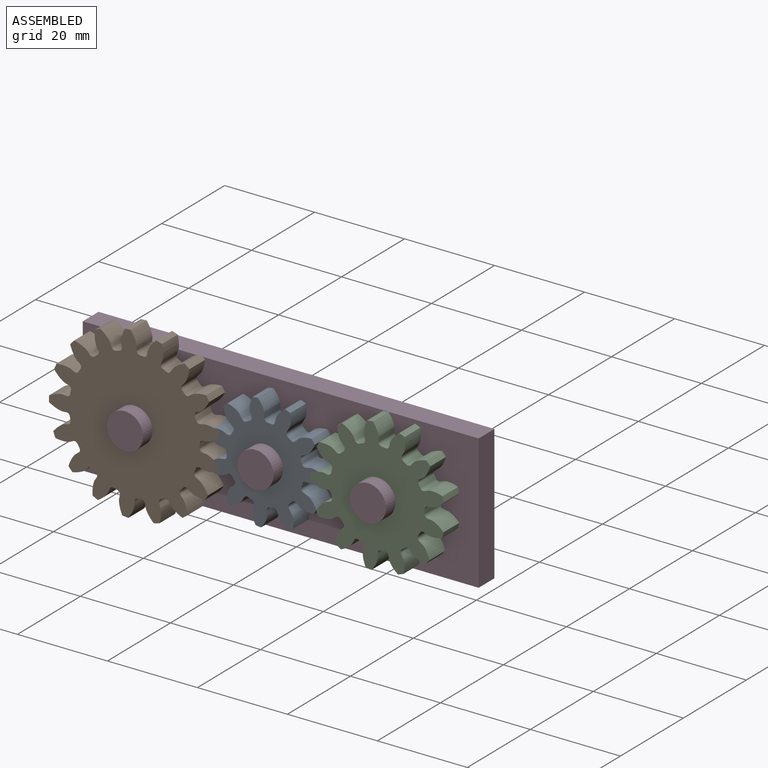
[diagram: assembled view]
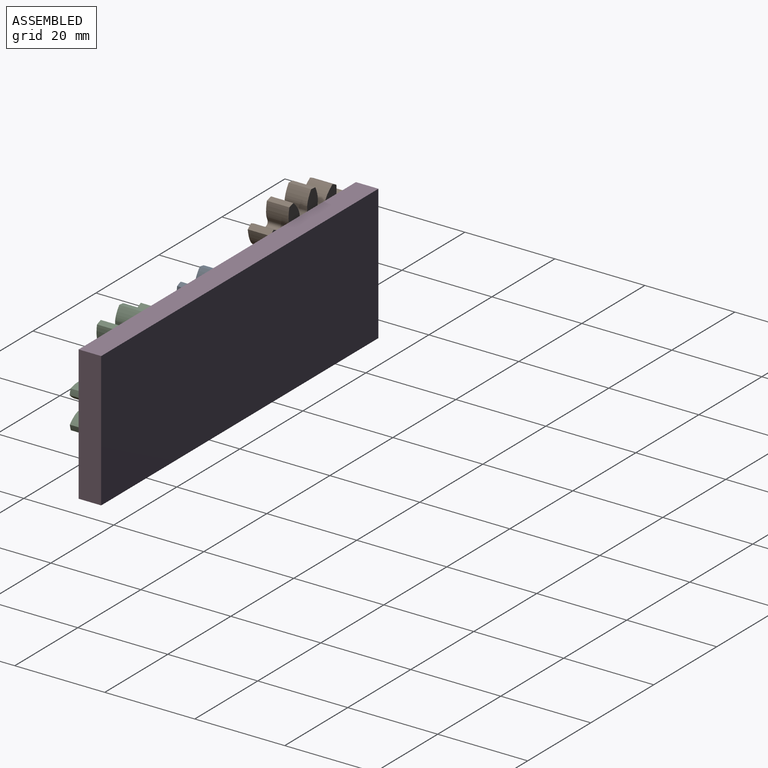
[diagram: assembled view, second angle]
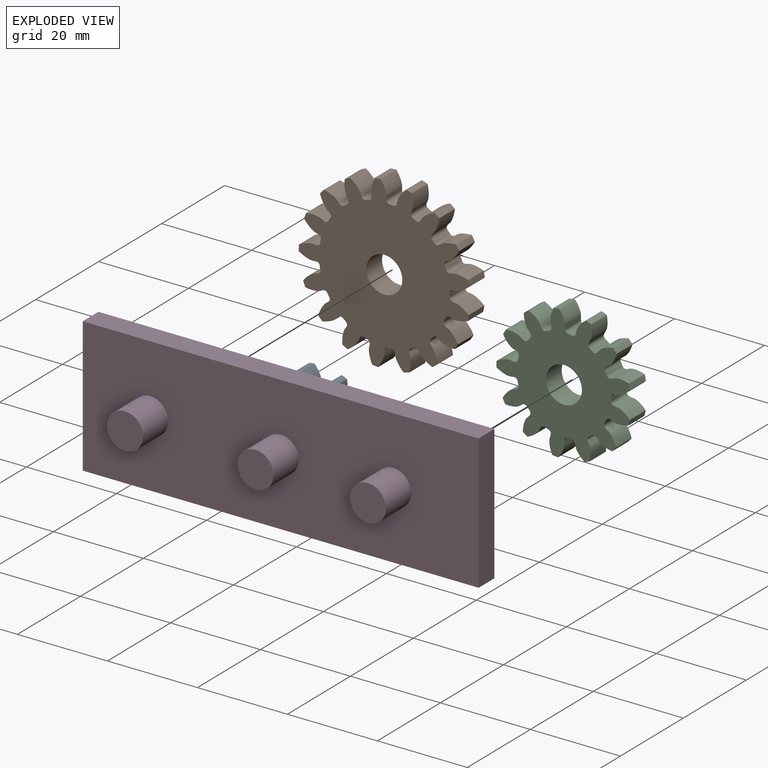
[diagram: exploded view]
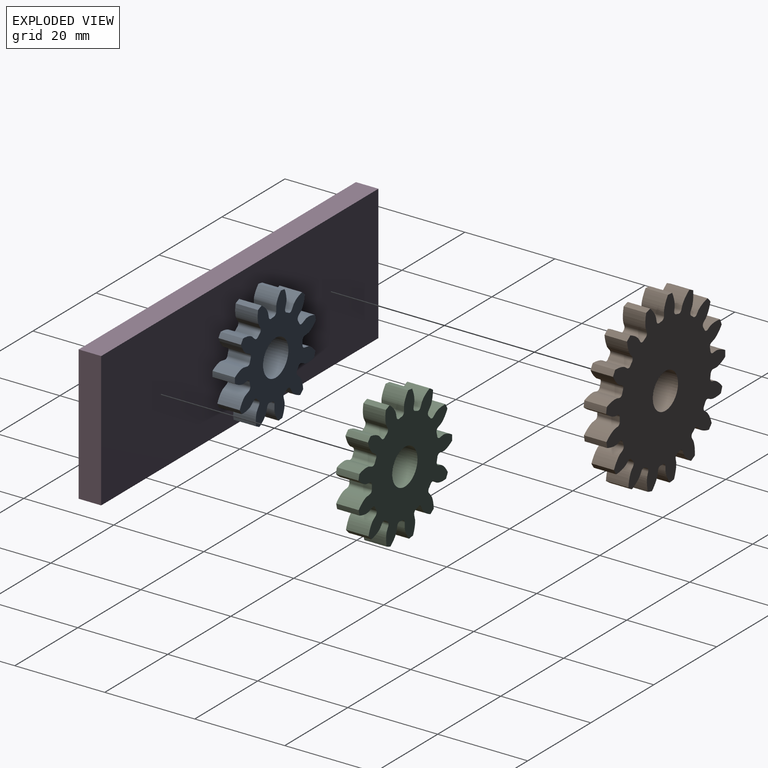
[diagram: exploded view, second angle]
ASSEMBLY  parts=4 mates=3
PART A: 69 faces, bbox 25.7x5x26 mm
  f0: extruded ~5x3.51mm, area 20.6mm2, adj f43,f44,f45,f46
  f1: cylinder r=8.5mm len=5mm, axis (0,1,0), area 4.2mm2, adj f44,f45,f46,f47
  f2: extruded ~5x3.51mm, area 20.6mm2, adj f3,f44,f45,f47
  f3: cylinder r=13mm len=5mm, axis (0,1,0), area 6mm2, adj f2,f4,f44,f45
  f4: extruded ~5x3.98mm, area 20.6mm2, adj f3,f44,f45,f48
  f5: cylinder r=8.5mm len=5mm, axis (0,1,0), area 4.2mm2, adj f44,f45,f48,f49
  f6: extruded ~5x3.5mm, area 20.6mm2, adj f7,f44,f45,f49
  f7: cylinder r=13mm len=5mm, axis (0,1,0), area 6mm2, adj f6,f8,f44,f45
  f8: extruded ~5x3.19mm, area 20.6mm2, adj f7,f44,f45,f50
  f9: cylinder r=8.5mm len=5mm, axis (0,1,0), area 4.2mm2, adj f44,f45,f50,f51
  f10: extruded ~5x3.98mm, area 20.6mm2, adj f11,f44,f45,f51
  f11: cylinder r=13mm len=5mm, axis (0,1,0), area 6mm2, adj f10,f12,f44,f45
  f12: extruded ~5x3.75mm, area 20.6mm2, adj f11,f44,f45,f52
  f13: cylinder r=8.5mm len=5mm, axis (0,1,0), area 4.2mm2, adj f44,f45,f52,f53
  f14: extruded ~5x3.2mm, area 20.6mm2, adj f15,f44,f45,f53
  f15: cylinder r=13mm len=5mm, axis (0,1,0), area 6mm2, adj f14,f16,f44,f45
  f16: extruded ~5x3.9mm, area 20.6mm2, adj f15,f44,f45,f54
  f17: cylinder r=8.5mm len=5mm, axis (0,1,0), area 4.2mm2, adj f44,f45,f54,f55
  f18: extruded ~5x3.74mm, area 20.6mm2, adj f19,f44,f45,f55
  f19: cylinder r=13mm len=5mm, axis (0,1,0), area 6mm2, adj f18,f20,f44,f45
  f20: extruded ~5x2.83mm, area 20.6mm2, adj f19,f44,f45,f56
  f21: cylinder r=8.5mm len=5mm, axis (0,1,0), area 4.2mm2, adj f44,f45,f56,f57
  f22: extruded ~5x3.9mm, area 20.6mm2, adj f23,f44,f45,f57
  f23: cylinder r=13mm len=5mm, axis (0,1,0), area 6mm2, adj f22,f24,f44,f45
  f24: extruded ~5x3.9mm, area 20.6mm2, adj f23,f44,f45,f58
  f25: cylinder r=8.5mm len=5mm, axis (0,1,0), area 4.2mm2, adj f44,f45,f58,f59
  f26: extruded ~5x2.83mm, area 20.6mm2, adj f27,f44,f45,f59
  f27: cylinder r=13mm len=5mm, axis (0,1,0), area 6mm2, adj f26,f28,f44,f45
  f28: extruded ~5x3.74mm, area 20.6mm2, adj f27,f44,f45,f60
  f29: cylinder r=8.5mm len=5mm, axis (0,1,0), area 4.2mm2, adj f44,f45,f60,f61
  f30: extruded ~5x3.9mm, area 20.6mm2, adj f31,f44,f45,f61
  f31: cylinder r=13mm len=5mm, axis (0,1,0), area 6mm2, adj f30,f32,f44,f45
  f32: extruded ~5x3.2mm, area 20.6mm2, adj f31,f44,f45,f62
  f33: cylinder r=8.5mm len=5mm, axis (0,1,0), area 4.2mm2, adj f44,f45,f62,f63
  f34: extruded ~5x3.75mm, area 20.6mm2, adj f35,f44,f45,f63
  f35: cylinder r=13mm len=5mm, axis (0,1,0), area 6mm2, adj f34,f36,f44,f45
  f36: extruded ~5x3.98mm, area 20.6mm2, adj f35,f44,f45,f64
  f37: cylinder r=8.5mm len=5mm, axis (0,1,0), area 4.2mm2, adj f44,f45,f64,f65
  f38: extruded ~5x3.19mm, area 20.6mm2, adj f39,f44,f45,f65
  f39: cylinder r=13mm len=5mm, axis (0,1,0), area 6mm2, adj f38,f40,f44,f45
  f40: extruded ~5x3.5mm, area 20.6mm2, adj f39,f44,f45,f66
  f41: cylinder r=8.5mm len=5mm, axis (0,1,0), area 4.2mm2, adj f44,f45,f66,f67
  f42: extruded ~5x3.98mm, area 20.6mm2, adj f43,f44,f45,f67
  f43: cylinder r=13mm len=5mm, axis (0,1,0), area 6mm2, adj f0,f42,f44,f45
  f44: plane 25.96x25.7mm, normal (0,-1,0), area 314.1mm2, adj f0,f1,f2,f3,f4,f5,f6,f7
  f45: plane 25.96x25.7mm, normal (0,1,0), area 314.1mm2, adj f0,f1,f2,f3,f4,f5,f6,f7
  f46: cylinder r=0.72mm len=5mm, axis (0,1,0), area 5.4mm2, adj f0,f1,f44,f45
  f47: cylinder r=0.72mm len=5mm, axis (0,1,0), area 5.4mm2, adj f1,f2,f44,f45
  f48: cylinder r=0.72mm len=5mm, axis (0,1,0), area 5.4mm2, adj f4,f5,f44,f45
  f49: cylinder r=0.72mm len=5mm, axis (0,1,0), area 5.4mm2, adj f5,f6,f44,f45
  f50: cylinder r=0.72mm len=5mm, axis (0,1,0), area 5.4mm2, adj f8,f9,f44,f45
  f51: cylinder r=0.72mm len=5mm, axis (0,1,0), area 5.4mm2, adj f9,f10,f44,f45
  f52: cylinder r=0.72mm len=5mm, axis (0,1,0), area 5.4mm2, adj f12,f13,f44,f45
  f53: cylinder r=0.72mm len=5mm, axis (0,1,0), area 5.4mm2, adj f13,f14,f44,f45
  f54: cylinder r=0.72mm len=5mm, axis (0,1,0), area 5.4mm2, adj f16,f17,f44,f45
  f55: cylinder r=0.72mm len=5mm, axis (0,1,0), area 5.4mm2, adj f17,f18,f44,f45
  f56: cylinder r=0.72mm len=5mm, axis (0,1,0), area 5.4mm2, adj f20,f21,f44,f45
  f57: cylinder r=0.72mm len=5mm, axis (0,1,0), area 5.4mm2, adj f21,f22,f44,f45
  f58: cylinder r=0.72mm len=5mm, axis (0,1,0), area 5.4mm2, adj f24,f25,f44,f45
  f59: cylinder r=0.72mm len=5mm, axis (0,1,0), area 5.4mm2, adj f25,f26,f44,f45
  f60: cylinder r=0.72mm len=5mm, axis (0,1,0), area 5.4mm2, adj f28,f29,f44,f45
  f61: cylinder r=0.72mm len=5mm, axis (0,1,0), area 5.4mm2, adj f29,f30,f44,f45
  f62: cylinder r=0.72mm len=5mm, axis (0,1,0), area 5.4mm2, adj f32,f33,f44,f45
  f63: cylinder r=0.72mm len=5mm, axis (0,1,0), area 5.4mm2, adj f33,f34,f44,f45
  f64: cylinder r=0.72mm len=5mm, axis (0,1,0), area 5.4mm2, adj f36,f37,f44,f45
  f65: cylinder r=0.72mm len=5mm, axis (0,1,0), area 5.4mm2, adj f37,f38,f44,f45
  f66: cylinder r=0.72mm len=5mm, axis (0,1,0), area 5.4mm2, adj f40,f41,f44,f45
  f67: cylinder r=0.72mm len=5mm, axis (0,1,0), area 5.4mm2, adj f41,f42,f44,f45
  f68: cylinder r=4mm len=8mm, axis (0,-1,0), area 125.7mm2, adj f44,f45
PART B: 105 faces, bbox 37.8x5x38 mm
  f0: extruded ~5x3.6mm, area 20.3mm2, adj f67,f68,f69,f70
  f1: cylinder r=14.5mm len=5mm, axis (0,1,0), area 4.1mm2, adj f68,f69,f70,f71
  f2: extruded ~5x3.6mm, area 20.3mm2, adj f3,f68,f69,f71
  f3: cylinder r=19mm len=5mm, axis (0,1,0), area 6.7mm2, adj f2,f4,f68,f69
  f4: extruded ~5x3.96mm, area 20.3mm2, adj f3,f68,f69,f72
  f5: cylinder r=14.5mm len=5mm, axis (0,1,0), area 4.1mm2, adj f68,f69,f72,f73
  f6: extruded ~5x2.84mm, area 20.3mm2, adj f7,f68,f69,f73
  f7: cylinder r=19mm len=5mm, axis (0,1,0), area 6.7mm2, adj f6,f8,f68,f69
  f8: extruded ~5x3.77mm, area 20.3mm2, adj f7,f68,f69,f74
  f9: cylinder r=14.5mm len=5mm, axis (0,1,0), area 4.1mm2, adj f68,f69,f74,f75
  f10: extruded ~5x3.65mm, area 20.3mm2, adj f11,f68,f69,f75
  f11: cylinder r=19mm len=5mm, axis (0,1,0), area 6.7mm2, adj f10,f12,f68,f69
  f12: extruded ~5x3.08mm, area 20.3mm2, adj f11,f68,f69,f76
  f13: cylinder r=14.5mm len=5mm, axis (0,1,0), area 4.1mm2, adj f68,f69,f76,f77
  f14: extruded ~5x3.96mm, area 20.3mm2, adj f15,f68,f69,f77
  f15: cylinder r=19mm len=5mm, axis (0,1,0), area 6.7mm2, adj f14,f16,f68,f69
  f16: extruded ~5x3.44mm, area 20.3mm2, adj f15,f68,f69,f78
  f17: cylinder r=14.5mm len=5mm, axis (0,1,0), area 4.1mm2, adj f68,f69,f78,f79
  f18: extruded ~5x3.74mm, area 20.3mm2, adj f19,f68,f69,f79
  f19: cylinder r=19mm len=5mm, axis (0,1,0), area 6.7mm2, adj f18,f20,f68,f69
  f20: extruded ~5x3.92mm, area 20.3mm2, adj f19,f68,f69,f80
  f21: cylinder r=14.5mm len=5mm, axis (0,1,0), area 4.1mm2, adj f68,f69,f80,f81
  f22: extruded ~5x3.01mm, area 20.3mm2, adj f23,f68,f69,f81
  f23: cylinder r=19mm len=5mm, axis (0,1,0), area 6.7mm2, adj f22,f24,f68,f69
  f24: extruded ~5x3.87mm, area 20.3mm2, adj f23,f68,f69,f82
  f25: cylinder r=14.5mm len=5mm, axis (0,1,0), area 4.1mm2, adj f68,f69,f82,f83
  f26: extruded ~5x3.49mm, area 20.3mm2, adj f27,f68,f69,f83
  f27: cylinder r=19mm len=5mm, axis (0,1,0), area 6.7mm2, adj f26,f28,f68,f69
  f28: extruded ~5x3.3mm, area 20.3mm2, adj f27,f68,f69,f84
  f29: cylinder r=14.5mm len=5mm, axis (0,1,0), area 4.1mm2, adj f68,f69,f84,f85
  f30: extruded ~5x3.93mm, area 20.3mm2, adj f31,f68,f69,f85
  f31: cylinder r=19mm len=5mm, axis (0,1,0), area 6.7mm2, adj f30,f32,f68,f69
  f32: extruded ~5x3.24mm, area 20.3mm2, adj f31,f68,f69,f86
  f33: cylinder r=14.5mm len=5mm, axis (0,1,0), area 4.1mm2, adj f68,f69,f86,f87
  f34: extruded ~5x3.84mm, area 20.3mm2, adj f35,f68,f69,f87
  f35: cylinder r=19mm len=5mm, axis (0,1,0), area 6.7mm2, adj f34,f36,f68,f69
  f36: extruded ~5x3.84mm, area 20.3mm2, adj f35,f68,f69,f88
  f37: cylinder r=14.5mm len=5mm, axis (0,1,0), area 4.1mm2, adj f68,f69,f88,f89
  f38: extruded ~5x3.24mm, area 20.3mm2, adj f39,f68,f69,f89
  f39: cylinder r=19mm len=5mm, axis (0,1,0), area 6.7mm2, adj f38,f40,f68,f69
  f40: extruded ~5x3.93mm, area 20.3mm2, adj f39,f68,f69,f90
  f41: cylinder r=14.5mm len=5mm, axis (0,1,0), area 4.1mm2, adj f68,f69,f90,f91
  f42: extruded ~5x3.3mm, area 20.3mm2, adj f43,f68,f69,f91
  f43: cylinder r=19mm len=5mm, axis (0,1,0), area 6.7mm2, adj f42,f44,f68,f69
  f44: extruded ~5x3.49mm, area 20.3mm2, adj f43,f68,f69,f92
  f45: cylinder r=14.5mm len=5mm, axis (0,1,0), area 4.1mm2, adj f68,f69,f92,f93
  f46: extruded ~5x3.87mm, area 20.3mm2, adj f47,f68,f69,f93
  f47: cylinder r=19mm len=5mm, axis (0,1,0), area 6.7mm2, adj f46,f48,f68,f69
  f48: extruded ~5x3.01mm, area 20.3mm2, adj f47,f68,f69,f94
  f49: cylinder r=14.5mm len=5mm, axis (0,1,0), area 4.1mm2, adj f68,f69,f94,f95
  f50: extruded ~5x3.92mm, area 20.3mm2, adj f51,f68,f69,f95
  f51: cylinder r=19mm len=5mm, axis (0,1,0), area 6.7mm2, adj f50,f52,f68,f69
  f52: extruded ~5x3.74mm, area 20.3mm2, adj f51,f68,f69,f96
  f53: cylinder r=14.5mm len=5mm, axis (0,1,0), area 4.1mm2, adj f68,f69,f96,f97
  f54: extruded ~5x3.44mm, area 20.3mm2, adj f55,f68,f69,f97
  f55: cylinder r=19mm len=5mm, axis (0,1,0), area 6.7mm2, adj f54,f56,f68,f69
  f56: extruded ~5x3.96mm, area 20.3mm2, adj f55,f68,f69,f98
  f57: cylinder r=14.5mm len=5mm, axis (0,1,0), area 4.1mm2, adj f68,f69,f98,f99
  f58: extruded ~5x3.08mm, area 20.3mm2, adj f59,f68,f69,f99
  f59: cylinder r=19mm len=5mm, axis (0,1,0), area 6.7mm2, adj f58,f60,f68,f69
  f60: extruded ~5x3.65mm, area 20.3mm2, adj f59,f68,f69,f100
  f61: cylinder r=14.5mm len=5mm, axis (0,1,0), area 4.1mm2, adj f68,f69,f100,f101
  f62: extruded ~5x3.77mm, area 20.3mm2, adj f63,f68,f69,f101
  f63: cylinder r=19mm len=5mm, axis (0,1,0), area 6.7mm2, adj f62,f64,f68,f69
  f64: extruded ~5x2.84mm, area 20.3mm2, adj f63,f68,f69,f102
  f65: cylinder r=14.5mm len=5mm, axis (0,1,0), area 4.1mm2, adj f68,f69,f102,f103
  f66: extruded ~5x3.96mm, area 20.3mm2, adj f67,f68,f69,f103
  f67: cylinder r=19mm len=5mm, axis (0,1,0), area 6.7mm2, adj f0,f66,f68,f69
  f68: plane 37.98x37.82mm, normal (0,-1,0), area 834.4mm2, adj f0,f1,f2,f3,f4,f5,f6,f7
  f69: plane 37.98x37.82mm, normal (0,1,0), area 834.4mm2, adj f0,f1,f2,f3,f4,f5,f6,f7
  f70: cylinder r=0.75mm len=5mm, axis (0,1,0), area 5.7mm2, adj f0,f1,f68,f69
  f71: cylinder r=0.75mm len=5mm, axis (0,1,0), area 5.7mm2, adj f1,f2,f68,f69
  f72: cylinder r=0.75mm len=5mm, axis (0,1,0), area 5.7mm2, adj f4,f5,f68,f69
  f73: cylinder r=0.75mm len=5mm, axis (0,1,0), area 5.7mm2, adj f5,f6,f68,f69
  f74: cylinder r=0.75mm len=5mm, axis (0,1,0), area 5.7mm2, adj f8,f9,f68,f69
  f75: cylinder r=0.75mm len=5mm, axis (0,1,0), area 5.7mm2, adj f9,f10,f68,f69
  f76: cylinder r=0.75mm len=5mm, axis (0,1,0), area 5.7mm2, adj f12,f13,f68,f69
  f77: cylinder r=0.75mm len=5mm, axis (0,1,0), area 5.7mm2, adj f13,f14,f68,f69
  f78: cylinder r=0.75mm len=5mm, axis (0,1,0), area 5.7mm2, adj f16,f17,f68,f69
  f79: cylinder r=0.75mm len=5mm, axis (0,1,0), area 5.7mm2, adj f17,f18,f68,f69
  f80: cylinder r=0.75mm len=5mm, axis (0,1,0), area 5.7mm2, adj f20,f21,f68,f69
  f81: cylinder r=0.75mm len=5mm, axis (0,1,0), area 5.7mm2, adj f21,f22,f68,f69
  f82: cylinder r=0.75mm len=5mm, axis (0,1,0), area 5.7mm2, adj f24,f25,f68,f69
  f83: cylinder r=0.75mm len=5mm, axis (0,1,0), area 5.7mm2, adj f25,f26,f68,f69
  f84: cylinder r=0.75mm len=5mm, axis (0,1,0), area 5.7mm2, adj f28,f29,f68,f69
  f85: cylinder r=0.75mm len=5mm, axis (0,1,0), area 5.7mm2, adj f29,f30,f68,f69
  f86: cylinder r=0.75mm len=5mm, axis (0,1,0), area 5.7mm2, adj f32,f33,f68,f69
  f87: cylinder r=0.75mm len=5mm, axis (0,1,0), area 5.7mm2, adj f33,f34,f68,f69
  f88: cylinder r=0.75mm len=5mm, axis (0,1,0), area 5.7mm2, adj f36,f37,f68,f69
  f89: cylinder r=0.75mm len=5mm, axis (0,1,0), area 5.7mm2, adj f37,f38,f68,f69
  f90: cylinder r=0.75mm len=5mm, axis (0,1,0), area 5.7mm2, adj f40,f41,f68,f69
  f91: cylinder r=0.75mm len=5mm, axis (0,1,0), area 5.7mm2, adj f41,f42,f68,f69
  f92: cylinder r=0.75mm len=5mm, axis (0,1,0), area 5.7mm2, adj f44,f45,f68,f69
  f93: cylinder r=0.75mm len=5mm, axis (0,1,0), area 5.7mm2, adj f45,f46,f68,f69
  f94: cylinder r=0.75mm len=5mm, axis (0,1,0), area 5.7mm2, adj f48,f49,f68,f69
  f95: cylinder r=0.75mm len=5mm, axis (0,1,0), area 5.7mm2, adj f49,f50,f68,f69
  f96: cylinder r=0.75mm len=5mm, axis (0,1,0), area 5.7mm2, adj f52,f53,f68,f69
  f97: cylinder r=0.75mm len=5mm, axis (0,1,0), area 5.7mm2, adj f53,f54,f68,f69
  f98: cylinder r=0.75mm len=5mm, axis (0,1,0), area 5.7mm2, adj f56,f57,f68,f69
  f99: cylinder r=0.75mm len=5mm, axis (0,1,0), area 5.7mm2, adj f57,f58,f68,f69
  f100: cylinder r=0.75mm len=5mm, axis (0,1,0), area 5.7mm2, adj f60,f61,f68,f69
  f101: cylinder r=0.75mm len=5mm, axis (0,1,0), area 5.7mm2, adj f61,f62,f68,f69
  f102: cylinder r=0.75mm len=5mm, axis (0,1,0), area 5.7mm2, adj f64,f65,f68,f69
  f103: cylinder r=0.75mm len=5mm, axis (0,1,0), area 5.7mm2, adj f65,f66,f68,f69
  f104: cylinder r=4mm len=8mm, axis (0,-1,0), area 125.7mm2, adj f68,f69
PART C: 81 faces, bbox 29.8x5x30 mm
  f0: extruded ~5x3.55mm, area 20.4mm2, adj f51,f52,f53,f54
  f1: cylinder r=10.5mm len=5mm, axis (0,1,0), area 4.2mm2, adj f52,f53,f54,f55
  f2: extruded ~5x3.55mm, area 20.4mm2, adj f3,f52,f53,f55
  f3: cylinder r=15mm len=5mm, axis (0,1,0), area 6.3mm2, adj f2,f4,f52,f53
  f4: extruded ~5x3.97mm, area 20.4mm2, adj f3,f52,f53,f56
  f5: cylinder r=10.5mm len=5mm, axis (0,1,0), area 4.2mm2, adj f52,f53,f56,f57
  f6: extruded ~5x3.23mm, area 20.4mm2, adj f7,f52,f53,f57
  f7: cylinder r=15mm len=5mm, axis (0,1,0), area 6.3mm2, adj f6,f8,f52,f53
  f8: extruded ~5x3.49mm, area 20.4mm2, adj f7,f52,f53,f58
  f9: cylinder r=10.5mm len=5mm, axis (0,1,0), area 4.2mm2, adj f52,f53,f58,f59
  f10: extruded ~5x3.94mm, area 20.4mm2, adj f11,f52,f53,f59
  f11: cylinder r=15mm len=5mm, axis (0,1,0), area 6.3mm2, adj f10,f12,f52,f53
  f12: extruded ~5x3.31mm, area 20.4mm2, adj f11,f52,f53,f60
  f13: cylinder r=10.5mm len=5mm, axis (0,1,0), area 4.2mm2, adj f52,f53,f60,f61
  f14: extruded ~5x3.74mm, area 20.4mm2, adj f15,f52,f53,f61
  f15: cylinder r=15mm len=5mm, axis (0,1,0), area 6.3mm2, adj f14,f16,f52,f53
  f16: extruded ~5x3.95mm, area 20.4mm2, adj f15,f52,f53,f62
  f17: cylinder r=10.5mm len=5mm, axis (0,1,0), area 4.2mm2, adj f52,f53,f62,f63
  f18: extruded ~5x2.93mm, area 20.4mm2, adj f19,f52,f53,f63
  f19: cylinder r=15mm len=5mm, axis (0,1,0), area 6.3mm2, adj f18,f20,f52,f53
  f20: extruded ~5x3.69mm, area 20.4mm2, adj f19,f52,f53,f64
  f21: cylinder r=10.5mm len=5mm, axis (0,1,0), area 4.2mm2, adj f52,f53,f64,f65
  f22: extruded ~5x3.84mm, area 20.4mm2, adj f23,f52,f53,f65
  f23: cylinder r=15mm len=5mm, axis (0,1,0), area 6.3mm2, adj f22,f24,f52,f53
  f24: extruded ~5x3.02mm, area 20.4mm2, adj f23,f52,f53,f66
  f25: cylinder r=10.5mm len=5mm, axis (0,1,0), area 4.2mm2, adj f52,f53,f66,f67
  f26: extruded ~5x3.87mm, area 20.4mm2, adj f27,f52,f53,f67
  f27: cylinder r=15mm len=5mm, axis (0,1,0), area 6.3mm2, adj f26,f28,f52,f53
  f28: extruded ~5x3.87mm, area 20.4mm2, adj f27,f52,f53,f68
  f29: cylinder r=10.5mm len=5mm, axis (0,1,0), area 4.2mm2, adj f52,f53,f68,f69
  f30: extruded ~5x3.02mm, area 20.4mm2, adj f31,f52,f53,f69
  f31: cylinder r=15mm len=5mm, axis (0,1,0), area 6.3mm2, adj f30,f32,f52,f53
  f32: extruded ~5x3.84mm, area 20.4mm2, adj f31,f52,f53,f70
  f33: cylinder r=10.5mm len=5mm, axis (0,1,0), area 4.2mm2, adj f52,f53,f70,f71
  f34: extruded ~5x3.69mm, area 20.4mm2, adj f35,f52,f53,f71
  f35: cylinder r=15mm len=5mm, axis (0,1,0), area 6.3mm2, adj f34,f36,f52,f53
  f36: extruded ~5x2.93mm, area 20.4mm2, adj f35,f52,f53,f72
  f37: cylinder r=10.5mm len=5mm, axis (0,1,0), area 4.2mm2, adj f52,f53,f72,f73
  f38: extruded ~5x3.95mm, area 20.4mm2, adj f39,f52,f53,f73
  f39: cylinder r=15mm len=5mm, axis (0,1,0), area 6.3mm2, adj f38,f40,f52,f53
  f40: extruded ~5x3.74mm, area 20.4mm2, adj f39,f52,f53,f74
  f41: cylinder r=10.5mm len=5mm, axis (0,1,0), area 4.2mm2, adj f52,f53,f74,f75
  f42: extruded ~5x3.31mm, area 20.4mm2, adj f43,f52,f53,f75
  f43: cylinder r=15mm len=5mm, axis (0,1,0), area 6.3mm2, adj f42,f44,f52,f53
  f44: extruded ~5x3.94mm, area 20.4mm2, adj f43,f52,f53,f76
  f45: cylinder r=10.5mm len=5mm, axis (0,1,0), area 4.2mm2, adj f52,f53,f76,f77
  f46: extruded ~5x3.49mm, area 20.4mm2, adj f47,f52,f53,f77
  f47: cylinder r=15mm len=5mm, axis (0,1,0), area 6.3mm2, adj f46,f48,f52,f53
  f48: extruded ~5x3.23mm, area 20.4mm2, adj f47,f52,f53,f78
  f49: cylinder r=10.5mm len=5mm, axis (0,1,0), area 4.2mm2, adj f52,f53,f78,f79
  f50: extruded ~5x3.97mm, area 20.4mm2, adj f51,f52,f53,f79
  f51: cylinder r=15mm len=5mm, axis (0,1,0), area 6.3mm2, adj f0,f50,f52,f53
  f52: plane 29.98x29.76mm, normal (0,-1,0), area 462mm2, adj f0,f1,f2,f3,f4,f5,f6,f7
  f53: plane 29.98x29.76mm, normal (0,1,0), area 462mm2, adj f0,f1,f2,f3,f4,f5,f6,f7
  f54: cylinder r=0.74mm len=5mm, axis (0,1,0), area 5.6mm2, adj f0,f1,f52,f53
  f55: cylinder r=0.74mm len=5mm, axis (0,1,0), area 5.6mm2, adj f1,f2,f52,f53
  f56: cylinder r=0.74mm len=5mm, axis (0,1,0), area 5.6mm2, adj f4,f5,f52,f53
  f57: cylinder r=0.74mm len=5mm, axis (0,1,0), area 5.6mm2, adj f5,f6,f52,f53
  f58: cylinder r=0.74mm len=5mm, axis (0,1,0), area 5.6mm2, adj f8,f9,f52,f53
  f59: cylinder r=0.74mm len=5mm, axis (0,1,0), area 5.6mm2, adj f9,f10,f52,f53
  f60: cylinder r=0.74mm len=5mm, axis (0,1,0), area 5.6mm2, adj f12,f13,f52,f53
  f61: cylinder r=0.74mm len=5mm, axis (0,1,0), area 5.6mm2, adj f13,f14,f52,f53
  f62: cylinder r=0.74mm len=5mm, axis (0,1,0), area 5.6mm2, adj f16,f17,f52,f53
  f63: cylinder r=0.74mm len=5mm, axis (0,1,0), area 5.6mm2, adj f17,f18,f52,f53
  f64: cylinder r=0.74mm len=5mm, axis (0,1,0), area 5.6mm2, adj f20,f21,f52,f53
  f65: cylinder r=0.74mm len=5mm, axis (0,1,0), area 5.6mm2, adj f21,f22,f52,f53
  f66: cylinder r=0.74mm len=5mm, axis (0,1,0), area 5.6mm2, adj f24,f25,f52,f53
  f67: cylinder r=0.74mm len=5mm, axis (0,1,0), area 5.6mm2, adj f25,f26,f52,f53
  f68: cylinder r=0.74mm len=5mm, axis (0,1,0), area 5.6mm2, adj f28,f29,f52,f53
  f69: cylinder r=0.74mm len=5mm, axis (0,1,0), area 5.6mm2, adj f29,f30,f52,f53
  f70: cylinder r=0.74mm len=5mm, axis (0,1,0), area 5.6mm2, adj f32,f33,f52,f53
  f71: cylinder r=0.74mm len=5mm, axis (0,1,0), area 5.6mm2, adj f33,f34,f52,f53
  f72: cylinder r=0.74mm len=5mm, axis (0,1,0), area 5.6mm2, adj f36,f37,f52,f53
  f73: cylinder r=0.74mm len=5mm, axis (0,1,0), area 5.6mm2, adj f37,f38,f52,f53
  f74: cylinder r=0.74mm len=5mm, axis (0,1,0), area 5.6mm2, adj f40,f41,f52,f53
  f75: cylinder r=0.74mm len=5mm, axis (0,1,0), area 5.6mm2, adj f41,f42,f52,f53
  f76: cylinder r=0.74mm len=5mm, axis (0,1,0), area 5.6mm2, adj f44,f45,f52,f53
  f77: cylinder r=0.74mm len=5mm, axis (0,1,0), area 5.6mm2, adj f45,f46,f52,f53
  f78: cylinder r=0.74mm len=5mm, axis (0,1,0), area 5.6mm2, adj f48,f49,f52,f53
  f79: cylinder r=0.74mm len=5mm, axis (0,1,0), area 5.6mm2, adj f49,f50,f52,f53
  f80: cylinder r=4mm len=8mm, axis (0,-1,0), area 125.7mm2, adj f52,f53
PART D: 12 faces, bbox 88x13x30 mm
  f0: plane 30x5mm, normal (1,0,0), area 150mm2, adj f1,f3,f4,f5
  f1: plane 88x5mm, normal (0,0,1), area 440mm2, adj f0,f2,f4,f5
  f2: plane 30x5mm, normal (-1,0,0), area 150mm2, adj f1,f3,f4,f5
  f3: plane 88x5mm, normal (0,0,-1), area 440mm2, adj f0,f2,f4,f5
  f4: plane 88x30mm, normal (0,-1,0), area 2489.2mm2, adj f0,f1,f2,f3,f6,f8,f10
  f5: plane 88x30mm, normal (0,1,0), area 2640mm2, adj f0,f1,f2,f3
  f6: cylinder r=4mm len=8mm, axis (0,1,0), area 201.1mm2, adj f4,f7
  f7: plane 8x8mm, normal (0,-1,0), area 50.3mm2, adj f6
  f8: cylinder r=4mm len=8mm, axis (0,1,0), area 201.1mm2, adj f4,f9
  f9: plane 8x8mm, normal (0,-1,0), area 50.3mm2, adj f8
  f10: cylinder r=4mm len=8mm, axis (0,1,0), area 201.1mm2, adj f4,f11
  f11: plane 8x8mm, normal (0,-1,0), area 50.3mm2, adj f10
PLACE A rot(axis=(0,-1,0),18deg) t=(0,-5,0)mm
PLACE B rot(axis=(0,-1,0),105deg) t=(-29,-5,0)mm
PLACE C rot(axis=(0,-1,0),165.6deg) t=(25,-5,0)mm
PLACE D at identity fixed
MATE revolute B.f3 <-> D.f6  axis (0,1,0) through (-29,-5,0)mm
MATE revolute C.f3 <-> D.f10  axis (0,-1,0) through (25,-5,0)mm
MATE revolute A.f3 <-> D.f8  axis (0,1,0) through (0,-5,0)mm
